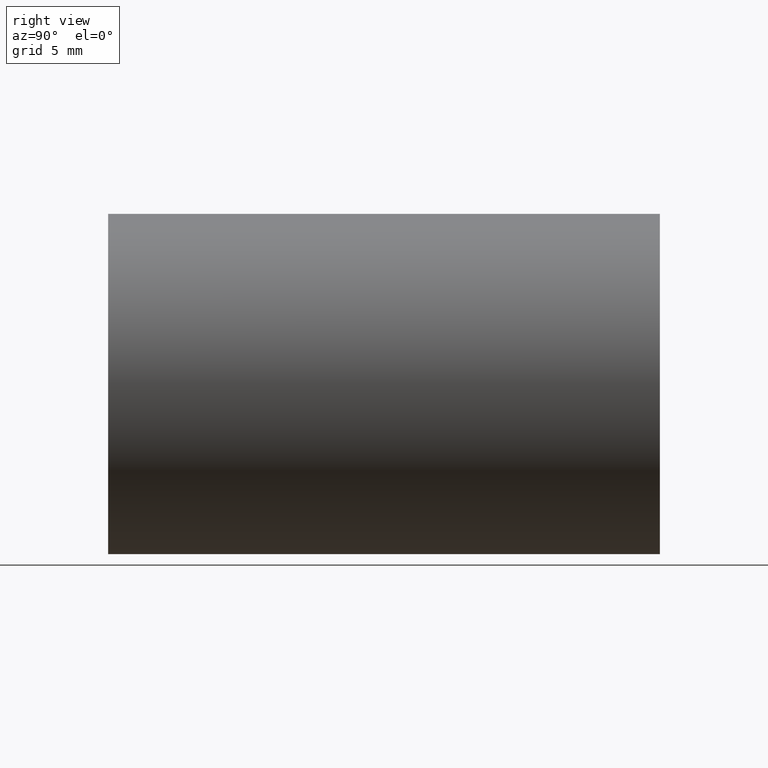
[diagram: clean part render]
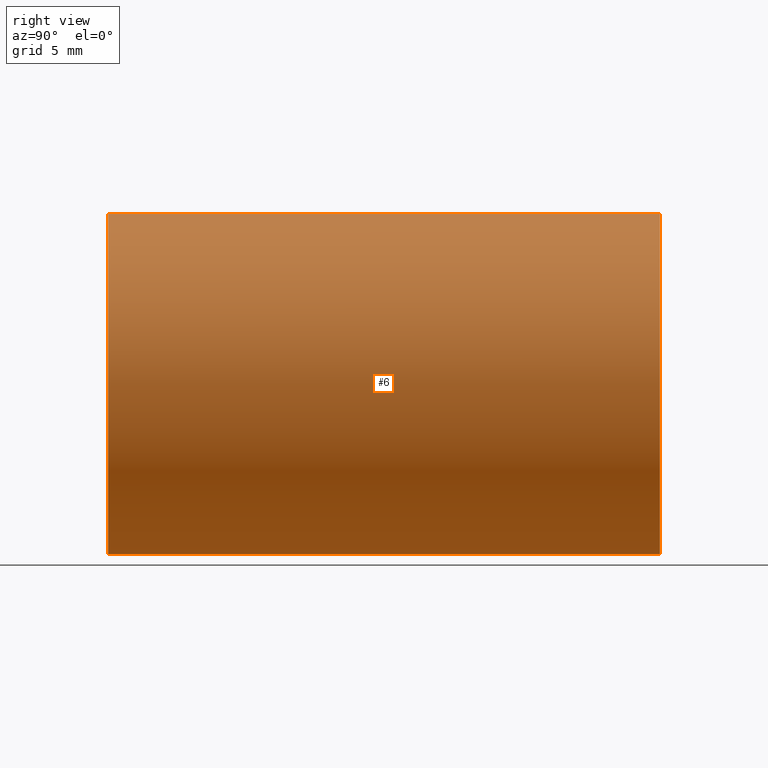
[diagram: same view with one face highlighted and labeled with its STEP entity id]
A machine part, right view. The second image highlights one B-rep face of the part: STEP entity #6.
In plain terms, the highlighted cylindrical surface (partial cylindrical patch) has radius 9.525 mm, axis along (-0, 1, -0).
Its self-contained STEP definition (entity closure, byte-faithful):
#6 = ADVANCED_FACE ( 'NONE', ( #209 ), #314, .T. ) ;
#13 = LINE ( 'NONE', #497, #489 ) ;
#14 = CARTESIAN_POINT ( 'NONE',  ( 0.0000000000000000000, -2.775557561562891400E-014, 9.525000000000019900 ) ) ;
#31 = AXIS2_PLACEMENT_3D ( 'NONE', #563, #322, #565 ) ;
#34 = AXIS2_PLACEMENT_3D ( 'NONE', #265, #544, #174 ) ;
#81 = ORIENTED_EDGE ( 'NONE', *, *, #223, .T. ) ;
#106 = LINE ( 'NONE', #411, #522 ) ;
#117 = CARTESIAN_POINT ( 'NONE',  ( 0.0000000000000000000, 30.89999999999998400, 0.0000000000000000000 ) ) ;
#130 = DIRECTION ( 'NONE',  ( -0.0000000000000000000, 1.000000000000000000, -0.0000000000000000000 ) ) ;
#174 = DIRECTION ( 'NONE',  ( 0.0000000000000000000, 0.0000000000000000000, 1.000000000000000000 ) ) ;
#209 = FACE_OUTER_BOUND ( 'NONE', #531, .T. ) ;
#218 = EDGE_CURVE ( 'NONE', #588, #434, #106, .T. ) ;
#223 = EDGE_CURVE ( 'NONE', #588, #321, #268, .T. ) ;
#232 = DIRECTION ( 'NONE',  ( -0.0000000000000000000, 1.000000000000000000, -0.0000000000000000000 ) ) ;
#234 = CARTESIAN_POINT ( 'NONE',  ( 1.166476076187856400E-015, -2.775557561562891400E-014, -9.525000000000019900 ) ) ;
#265 = CARTESIAN_POINT ( 'NONE',  ( 0.0000000000000000000, 161.3761669434274500, 0.0000000000000000000 ) ) ;
#268 = CIRCLE ( 'NONE', #31, 9.525000000000019900 ) ;
#307 = VERTEX_POINT ( 'NONE', #329 ) ;
#314 = CYLINDRICAL_SURFACE ( 'NONE', #34, 9.525000000000019900 ) ;
#321 = VERTEX_POINT ( 'NONE', #234 ) ;
#322 = DIRECTION ( 'NONE',  ( -0.0000000000000000000, 1.000000000000000000, -0.0000000000000000000 ) ) ;
#323 = ORIENTED_EDGE ( 'NONE', *, *, #494, .T. ) ;
#329 = CARTESIAN_POINT ( 'NONE',  ( 1.166476076187856400E-015, 30.89999999999998400, -9.525000000000019900 ) ) ;
#356 = AXIS2_PLACEMENT_3D ( 'NONE', #117, #432, #486 ) ;
#373 = CIRCLE ( 'NONE', #356, 9.525000000000019900 ) ;
#411 = CARTESIAN_POINT ( 'NONE',  ( 0.0000000000000000000, 161.3761669434274500, 9.525000000000019900 ) ) ;
#420 = ORIENTED_EDGE ( 'NONE', *, *, #218, .F. ) ;
#432 = DIRECTION ( 'NONE',  ( -0.0000000000000000000, 1.000000000000000000, -0.0000000000000000000 ) ) ;
#434 = VERTEX_POINT ( 'NONE', #592 ) ;
#486 = DIRECTION ( 'NONE',  ( 0.0000000000000000000, 0.0000000000000000000, 1.000000000000000000 ) ) ;
#489 = VECTOR ( 'NONE', #130, 1000.000000000000000 ) ;
#494 = EDGE_CURVE ( 'NONE', #321, #307, #13, .T. ) ;
#497 = CARTESIAN_POINT ( 'NONE',  ( 1.166476076187856400E-015, 161.3761669434274500, -9.525000000000019900 ) ) ;
#522 = VECTOR ( 'NONE', #232, 1000.000000000000000 ) ;
#531 = EDGE_LOOP ( 'NONE', ( #81, #323, #579, #420 ) ) ;
#544 = DIRECTION ( 'NONE',  ( -0.0000000000000000000, 1.000000000000000000, -0.0000000000000000000 ) ) ;
#563 = CARTESIAN_POINT ( 'NONE',  ( 0.0000000000000000000, -2.775557561562891400E-014, 0.0000000000000000000 ) ) ;
#565 = DIRECTION ( 'NONE',  ( 0.0000000000000000000, 0.0000000000000000000, 1.000000000000000000 ) ) ;
#579 = ORIENTED_EDGE ( 'NONE', *, *, #603, .F. ) ;
#588 = VERTEX_POINT ( 'NONE', #14 ) ;
#592 = CARTESIAN_POINT ( 'NONE',  ( 0.0000000000000000000, 30.89999999999998400, 9.525000000000019900 ) ) ;
#603 = EDGE_CURVE ( 'NONE', #434, #307, #373, .T. ) ;